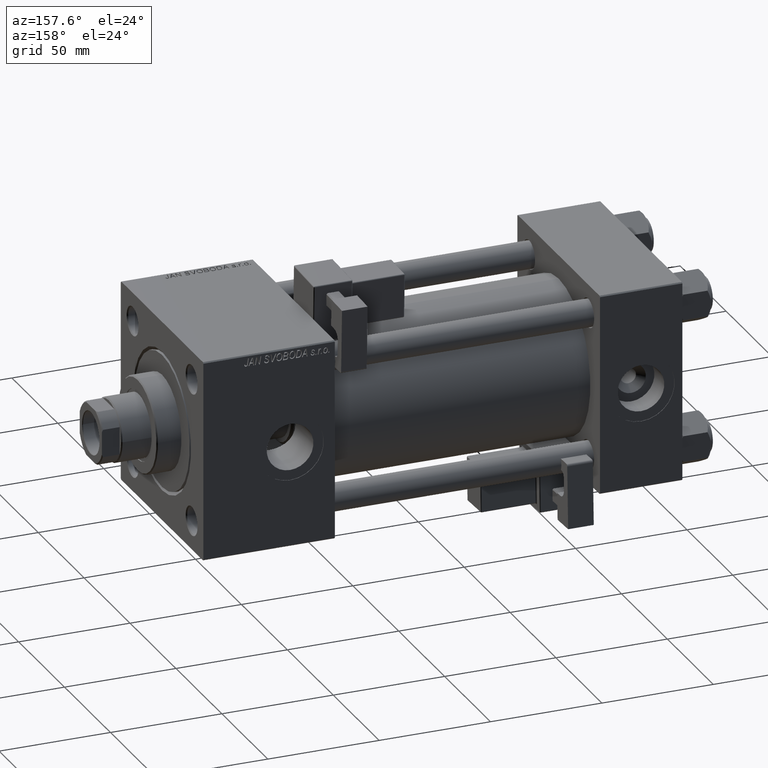
[diagram: clean part render]
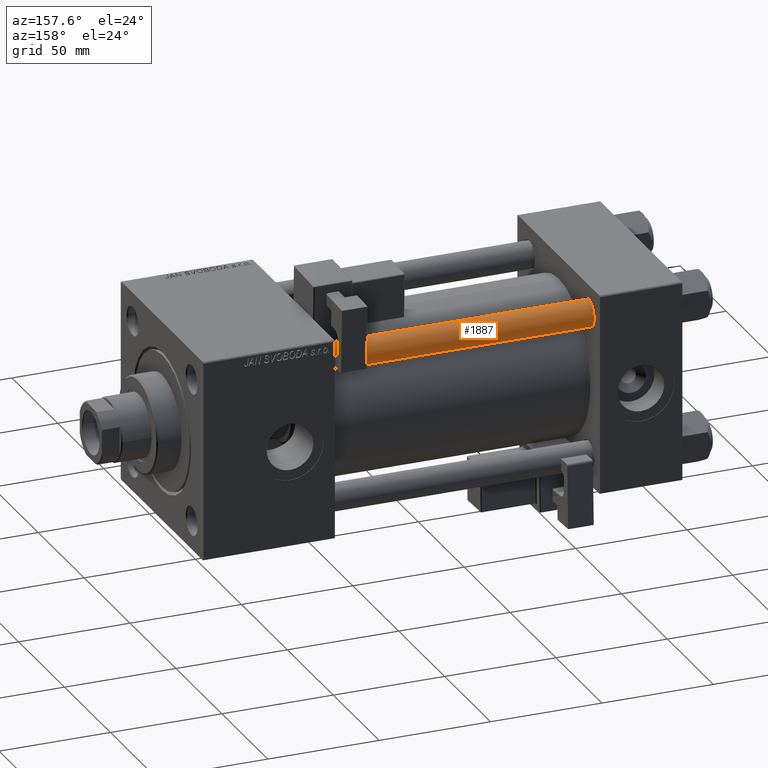
[diagram: same view with one face highlighted and labeled with its STEP entity id]
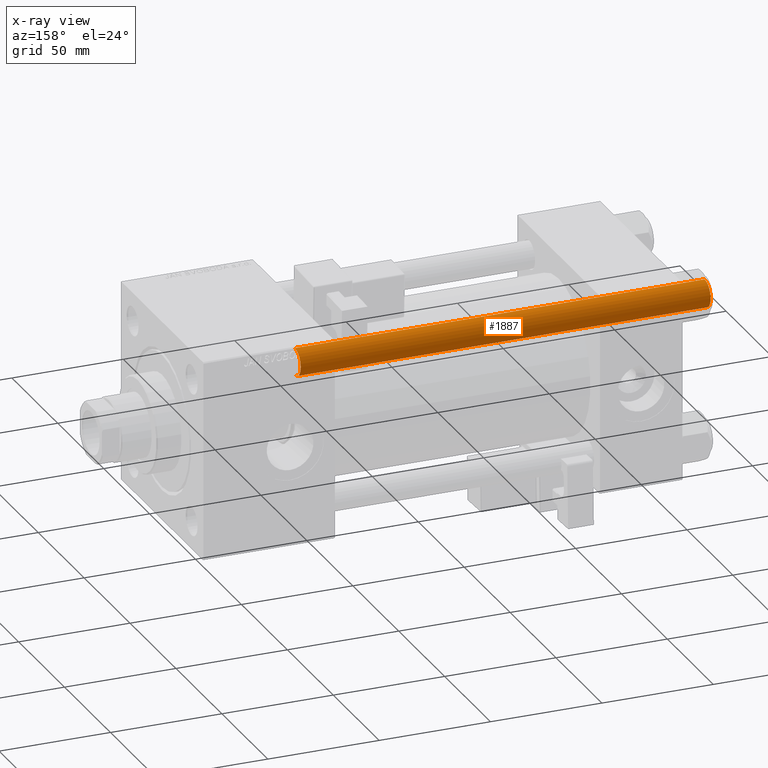
[diagram: x-ray of the same camera — body ghosted, the highlighted face saturated]
A machine part, auxiliary view. The second image highlights one B-rep face of the part: STEP entity #1887.
The next image is the same camera in x-ray: the body ghosted, the highlighted face saturated — about 0% of this face is hidden behind the body in this view.
In plain terms, the highlighted cylindrical surface (edge-blend (fillet) strip) has radius 6 mm, axis along (-1, 0, 0).
Its self-contained STEP definition (entity closure, byte-faithful):
#241 = EDGE_CURVE ( 'NONE', #45457, #51432, #27605, .T. ) ;
#1077 = CARTESIAN_POINT ( 'NONE',  ( 0.000000000000000000, 0.000000000000000000, 0.5000000000000281997 ) ) ;
#1887 = ADVANCED_FACE ( 'NONE', ( #43531 ), #14031, .T. ) ;
#3548 = AXIS2_PLACEMENT_3D ( 'NONE', #17279, #9160, #5093 ) ;
#4780 = ORIENTED_EDGE ( 'NONE', *, *, #18326, .T. ) ;
#5093 = DIRECTION ( 'NONE',  ( 1.000000000000000000, 0.000000000000000000, 0.000000000000000000 ) ) ;
#5192 = EDGE_CURVE ( 'NONE', #45457, #42928, #49415, .T. ) ;
#9160 = DIRECTION ( 'NONE',  ( 0.000000000000000000, 0.000000000000000000, -1.000000000000000000 ) ) ;
#9538 = LINE ( 'NONE', #42563, #26163 ) ;
#13588 = ORIENTED_EDGE ( 'NONE', *, *, #17965, .T. ) ;
#13815 = AXIS2_PLACEMENT_3D ( 'NONE', #26739, #32915, #53543 ) ;
#14031 = CYLINDRICAL_SURFACE ( 'NONE', #13815, 6.000000000000000888 ) ;
#15810 = AXIS2_PLACEMENT_3D ( 'NONE', #1077, #25980, #42770 ) ;
#16179 = CARTESIAN_POINT ( 'NONE',  ( -6.000000000000000888, 0.000000000000000000, 184.5000000000000000 ) ) ;
#16313 = VECTOR ( 'NONE', #23554, 1000.000000000000000 ) ;
#17279 = CARTESIAN_POINT ( 'NONE',  ( 0.000000000000000000, 0.000000000000000000, 184.5000000000000000 ) ) ;
#17965 = EDGE_CURVE ( 'NONE', #42928, #48447, #9538, .T. ) ;
#18326 = EDGE_CURVE ( 'NONE', #48447, #51432, #23608, .T. ) ;
#20418 = ORIENTED_EDGE ( 'NONE', *, *, #241, .F. ) ;
#21727 = DIRECTION ( 'NONE',  ( -0.000000000000000000, -0.000000000000000000, -1.000000000000000000 ) ) ;
#23554 = DIRECTION ( 'NONE',  ( -0.000000000000000000, -0.000000000000000000, -1.000000000000000000 ) ) ;
#23608 = CIRCLE ( 'NONE', #15810, 6.000000000000000888 ) ;
#24748 = CARTESIAN_POINT ( 'NONE',  ( -6.000000000000000888, 0.000000000000000000, 0.5000000000000281997 ) ) ;
#25980 = DIRECTION ( 'NONE',  ( -0.000000000000000000, -0.000000000000000000, 1.000000000000000000 ) ) ;
#26163 = VECTOR ( 'NONE', #21727, 1000.000000000000000 ) ;
#26739 = CARTESIAN_POINT ( 'NONE',  ( 0.000000000000000000, 0.000000000000000000, 185.0000000000000000 ) ) ;
#26799 = ORIENTED_EDGE ( 'NONE', *, *, #5192, .T. ) ;
#27221 = CARTESIAN_POINT ( 'NONE',  ( 6.000000000000000888, 7.347880794884120722E-16, 184.5000000000000000 ) ) ;
#27605 = LINE ( 'NONE', #47424, #16313 ) ;
#32915 = DIRECTION ( 'NONE',  ( -0.000000000000000000, -0.000000000000000000, -1.000000000000000000 ) ) ;
#32953 = EDGE_LOOP ( 'NONE', ( #26799, #13588, #4780, #20418 ) ) ;
#35377 = CARTESIAN_POINT ( 'NONE',  ( 6.000000000000000888, 7.347880794884120722E-16, 0.5000000000000281997 ) ) ;
#42563 = CARTESIAN_POINT ( 'NONE',  ( 6.000000000000000888, 7.347880794884120722E-16, 185.0000000000000000 ) ) ;
#42770 = DIRECTION ( 'NONE',  ( 1.000000000000000000, 0.000000000000000000, 0.000000000000000000 ) ) ;
#42928 = VERTEX_POINT ( 'NONE', #27221 ) ;
#43531 = FACE_OUTER_BOUND ( 'NONE', #32953, .T. ) ;
#45457 = VERTEX_POINT ( 'NONE', #16179 ) ;
#47424 = CARTESIAN_POINT ( 'NONE',  ( -6.000000000000000888, 0.000000000000000000, 185.0000000000000000 ) ) ;
#48447 = VERTEX_POINT ( 'NONE', #35377 ) ;
#49415 = CIRCLE ( 'NONE', #3548, 6.000000000000000888 ) ;
#51432 = VERTEX_POINT ( 'NONE', #24748 ) ;
#53543 = DIRECTION ( 'NONE',  ( -1.000000000000000000, 0.000000000000000000, 0.000000000000000000 ) ) ;